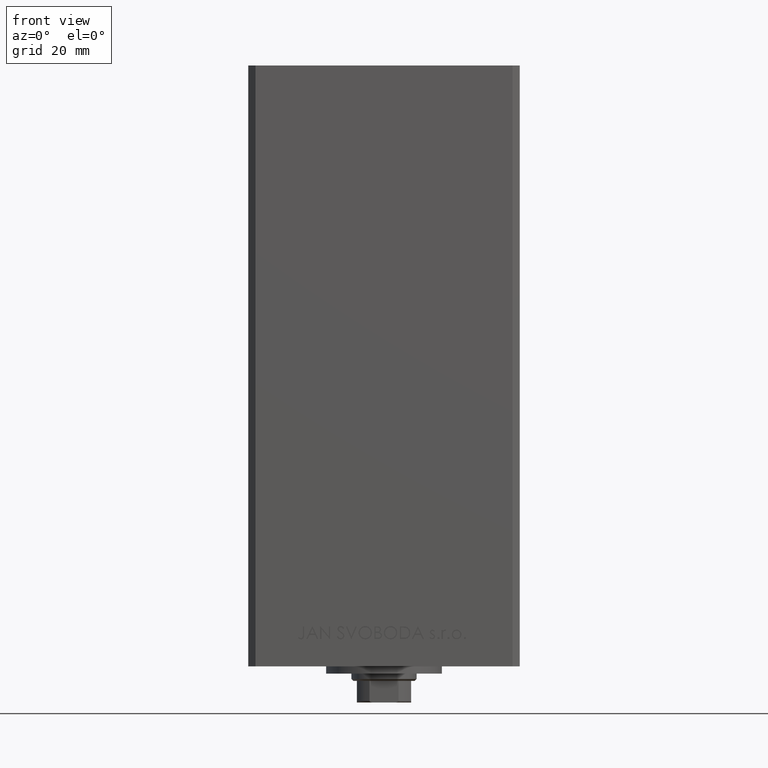
[diagram: clean part render]
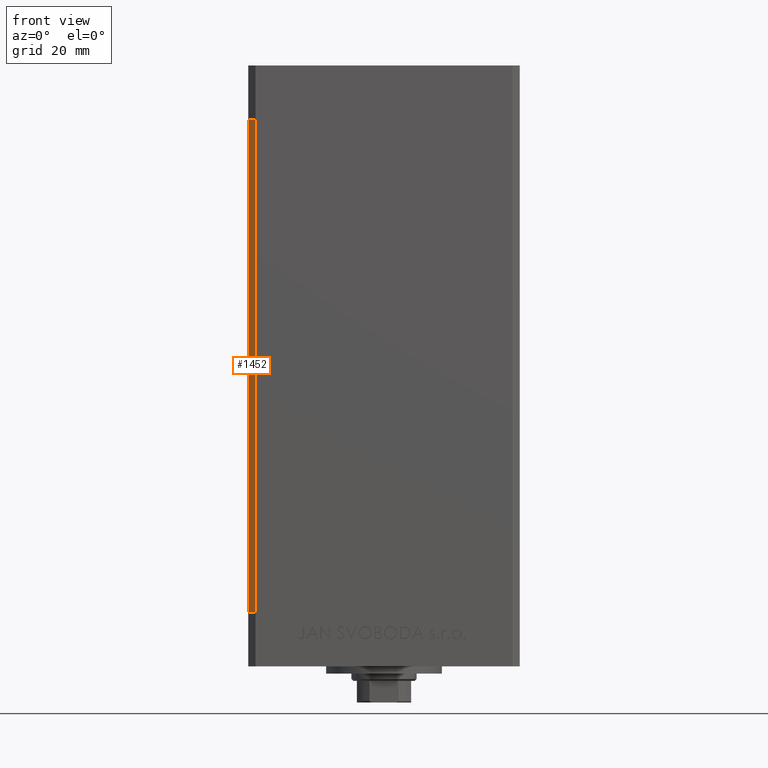
[diagram: same view with one face highlighted and labeled with its STEP entity id]
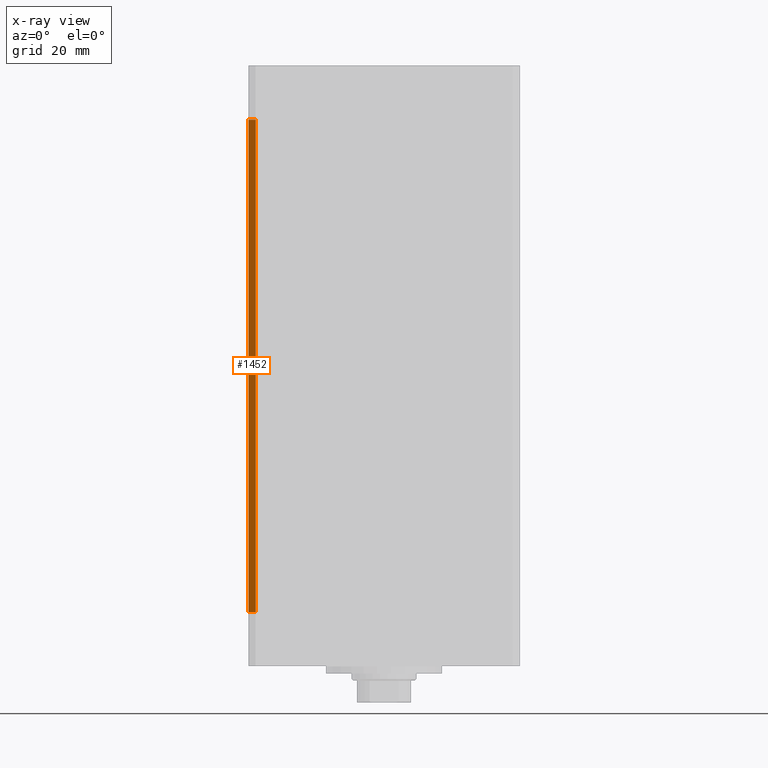
[diagram: x-ray of the same camera — body ghosted, the highlighted face saturated]
A machine part, front view. The second image highlights one B-rep face of the part: STEP entity #1452.
The next image is the same camera in x-ray: the body ghosted, the highlighted face saturated — about 0% of this face is hidden behind the body in this view.
In plain terms, the highlighted planar face has unit normal (0.7071, 0.7071, 0).
Its self-contained STEP definition (entity closure, byte-faithful):
#1452 = ADVANCED_FACE ( 'NONE', ( #38159 ), #34408, .F. ) ;
#3208 = ORIENTED_EDGE ( 'NONE', *, *, #42169, .T. ) ;
#3691 = VERTEX_POINT ( 'NONE', #47143 ) ;
#4254 = DIRECTION ( 'NONE',  ( -0.7071067811865474617, 0.7071067811865474617, 0.000000000000000000 ) ) ;
#4451 = CARTESIAN_POINT ( 'NONE',  ( -35.49999999999999289, -32.50000000000000000, 136.0000000000000000 ) ) ;
#8468 = CARTESIAN_POINT ( 'NONE',  ( -37.49999999999999289, -30.50000000000000000, 136.0000000000000000 ) ) ;
#8961 = VECTOR ( 'NONE', #35696, 1000.000000000000114 ) ;
#11725 = DIRECTION ( 'NONE',  ( 0.7071067811865475727, 0.7071067811865475727, -0.000000000000000000 ) ) ;
#11839 = CARTESIAN_POINT ( 'NONE',  ( -35.49999999999999289, -32.50000000000000000, 0.000000000000000000 ) ) ;
#12932 = LINE ( 'NONE', #28136, #40183 ) ;
#13513 = CARTESIAN_POINT ( 'NONE',  ( -37.49999999999999289, -30.50000000000000000, 0.000000000000000000 ) ) ;
#14940 = LINE ( 'NONE', #4451, #35216 ) ;
#16746 = EDGE_CURVE ( 'NONE', #3691, #42193, #12932, .T. ) ;
#17677 = CARTESIAN_POINT ( 'NONE',  ( -35.49999999999999289, -32.50000000000000000, 136.0000000000000000 ) ) ;
#19033 = EDGE_LOOP ( 'NONE', ( #28811, #26585, #32582, #3208 ) ) ;
#21183 = CARTESIAN_POINT ( 'NONE',  ( -37.49999999999999289, -30.50000000000000000, 136.0000000000000000 ) ) ;
#22278 = VERTEX_POINT ( 'NONE', #11839 ) ;
#26585 = ORIENTED_EDGE ( 'NONE', *, *, #42387, .F. ) ;
#28136 = CARTESIAN_POINT ( 'NONE',  ( -37.49999999999999289, -30.50000000000000000, 136.0000000000000000 ) ) ;
#28811 = ORIENTED_EDGE ( 'NONE', *, *, #41747, .T. ) ;
#30326 = CARTESIAN_POINT ( 'NONE',  ( -37.49999999999999289, -30.50000000000000000, 0.000000000000000000 ) ) ;
#32582 = ORIENTED_EDGE ( 'NONE', *, *, #16746, .F. ) ;
#34408 = PLANE ( 'NONE',  #41216 ) ;
#34606 = DIRECTION ( 'NONE',  ( -0.000000000000000000, -0.000000000000000000, -1.000000000000000000 ) ) ;
#35216 = VECTOR ( 'NONE', #34606, 1000.000000000000000 ) ;
#35369 = DIRECTION ( 'NONE',  ( 0.7071067811865474617, -0.7071067811865474617, 0.000000000000000000 ) ) ;
#35696 = DIRECTION ( 'NONE',  ( 0.7071067811865474617, -0.7071067811865474617, 0.000000000000000000 ) ) ;
#38159 = FACE_OUTER_BOUND ( 'NONE', #19033, .T. ) ;
#39998 = VECTOR ( 'NONE', #40849, 1000.000000000000000 ) ;
#40183 = VECTOR ( 'NONE', #35369, 1000.000000000000114 ) ;
#40849 = DIRECTION ( 'NONE',  ( -0.000000000000000000, -0.000000000000000000, -1.000000000000000000 ) ) ;
#41216 = AXIS2_PLACEMENT_3D ( 'NONE', #8468, #11725, #4254 ) ;
#41747 = EDGE_CURVE ( 'NONE', #43198, #22278, #47663, .T. ) ;
#42169 = EDGE_CURVE ( 'NONE', #3691, #43198, #44846, .T. ) ;
#42193 = VERTEX_POINT ( 'NONE', #17677 ) ;
#42387 = EDGE_CURVE ( 'NONE', #42193, #22278, #14940, .T. ) ;
#43198 = VERTEX_POINT ( 'NONE', #30326 ) ;
#44846 = LINE ( 'NONE', #21183, #39998 ) ;
#47143 = CARTESIAN_POINT ( 'NONE',  ( -37.49999999999999289, -30.50000000000000000, 136.0000000000000000 ) ) ;
#47663 = LINE ( 'NONE', #13513, #8961 ) ;